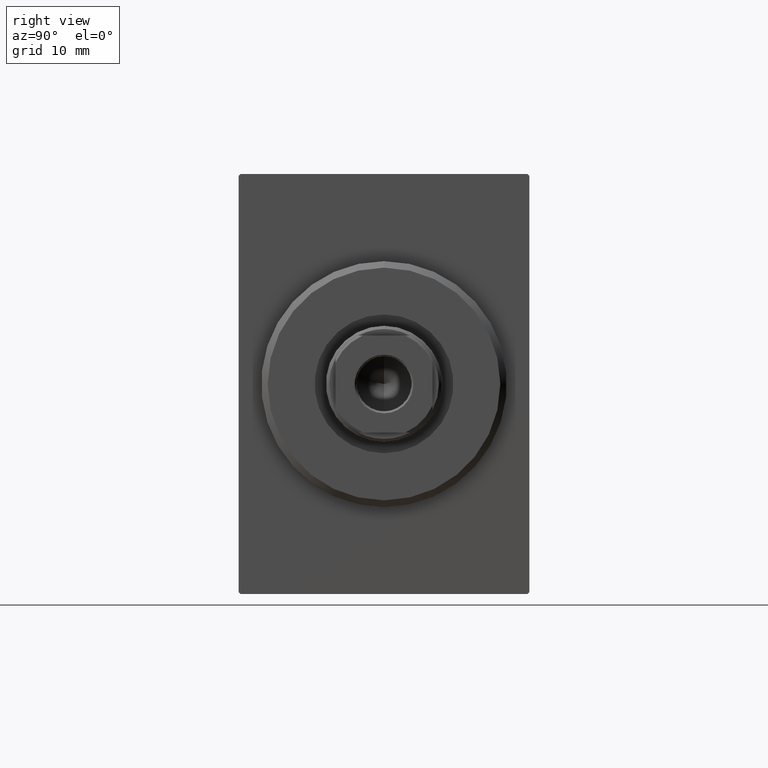
[diagram: clean part render]
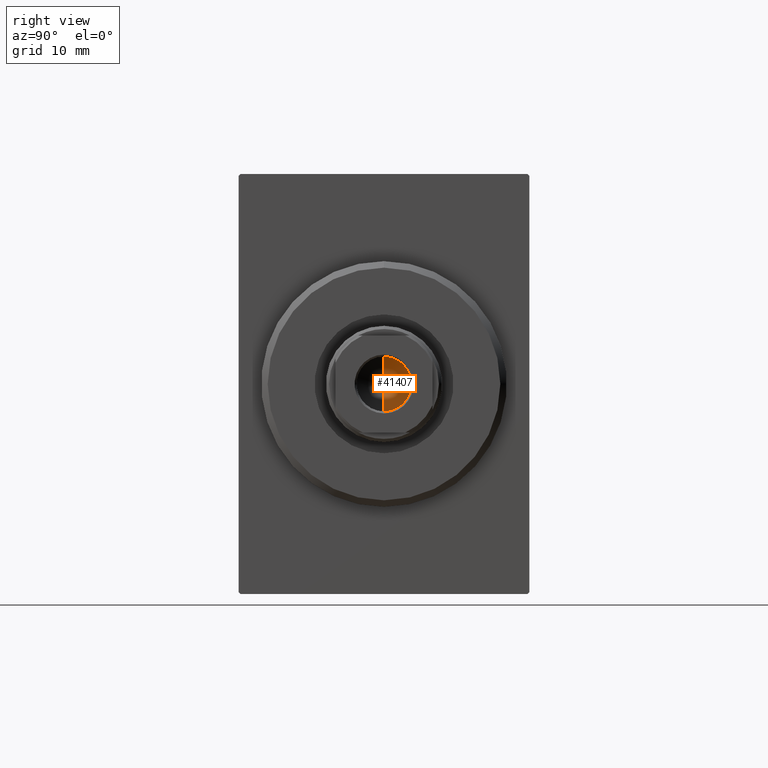
[diagram: same view with one face highlighted and labeled with its STEP entity id]
A machine part, right view. The second image highlights one B-rep face of the part: STEP entity #41407.
In plain terms, the highlighted conical surface has half-angle 59 deg.
Its self-contained STEP definition (entity closure, byte-faithful):
#398 = DIRECTION ( 'NONE',  ( 1.000000000000000000, 0.000000000000000000, 0.000000000000000000 ) ) ;
#814 = CARTESIAN_POINT ( 'NONE',  ( 0.000000000000000000, 0.000000000000000000, 60.00000000000001421 ) ) ;
#9056 = LINE ( 'NONE', #29023, #28819 ) ;
#9293 = CARTESIAN_POINT ( 'NONE',  ( -4.249999999999996447, 5.204748896376247741E-16, 60.00000000000001421 ) ) ;
#10350 = DIRECTION ( 'NONE',  ( -0.000000000000000000, -0.000000000000000000, 1.000000000000000000 ) ) ;
#10553 = DIRECTION ( 'NONE',  ( 1.000000000000000000, 0.000000000000000000, 0.000000000000000000 ) ) ;
#10744 = ORIENTED_EDGE ( 'NONE', *, *, #21987, .T. ) ;
#11755 = CONICAL_SURFACE ( 'NONE', #32543, 4.249999999999996447, 1.029744258676652757 ) ;
#12409 = CIRCLE ( 'NONE', #20743, 4.249999999999996447 ) ;
#12458 = ORIENTED_EDGE ( 'NONE', *, *, #36527, .T. ) ;
#19470 = DIRECTION ( 'NONE',  ( -0.8571673007021114454, 1.049727191138617586E-16, 0.5150380749100555988 ) ) ;
#19724 = VERTEX_POINT ( 'NONE', #26009 ) ;
#19725 = VERTEX_POINT ( 'NONE', #9293 ) ;
#20743 = AXIS2_PLACEMENT_3D ( 'NONE', #40483, #10350, #10553 ) ;
#21987 = EDGE_CURVE ( 'NONE', #19724, #26216, #9056, .T. ) ;
#25781 = LINE ( 'NONE', #39850, #38082 ) ;
#26009 = CARTESIAN_POINT ( 'NONE',  ( -4.190930801282543764E-15, 0.000000000000000000, 57.44634236913287140 ) ) ;
#26216 = VERTEX_POINT ( 'NONE', #39205 ) ;
#26407 = DIRECTION ( 'NONE',  ( 0.8571673007021114454, 0.000000000000000000, 0.5150380749100555988 ) ) ;
#28819 = VECTOR ( 'NONE', #26407, 1000.000000000000000 ) ;
#28968 = EDGE_LOOP ( 'NONE', ( #42436, #10744, #12458 ) ) ;
#29023 = CARTESIAN_POINT ( 'NONE',  ( 4.249999999999996447, 0.000000000000000000, 60.00000000000001421 ) ) ;
#32543 = AXIS2_PLACEMENT_3D ( 'NONE', #814, #37069, #398 ) ;
#36527 = EDGE_CURVE ( 'NONE', #26216, #19725, #12409, .T. ) ;
#37069 = DIRECTION ( 'NONE',  ( -0.000000000000000000, -0.000000000000000000, 1.000000000000000000 ) ) ;
#37706 = FACE_OUTER_BOUND ( 'NONE', #28968, .T. ) ;
#38082 = VECTOR ( 'NONE', #19470, 1000.000000000000000 ) ;
#39205 = CARTESIAN_POINT ( 'NONE',  ( 4.249999999999996447, 0.000000000000000000, 60.00000000000001421 ) ) ;
#39850 = CARTESIAN_POINT ( 'NONE',  ( -4.249999999999996447, 5.204748896376247741E-16, 60.00000000000001421 ) ) ;
#40483 = CARTESIAN_POINT ( 'NONE',  ( 0.000000000000000000, 0.000000000000000000, 60.00000000000001421 ) ) ;
#41407 = ADVANCED_FACE ( 'NONE', ( #37706 ), #11755, .F. ) ;
#41618 = EDGE_CURVE ( 'NONE', #19724, #19725, #25781, .T. ) ;
#42436 = ORIENTED_EDGE ( 'NONE', *, *, #41618, .F. ) ;